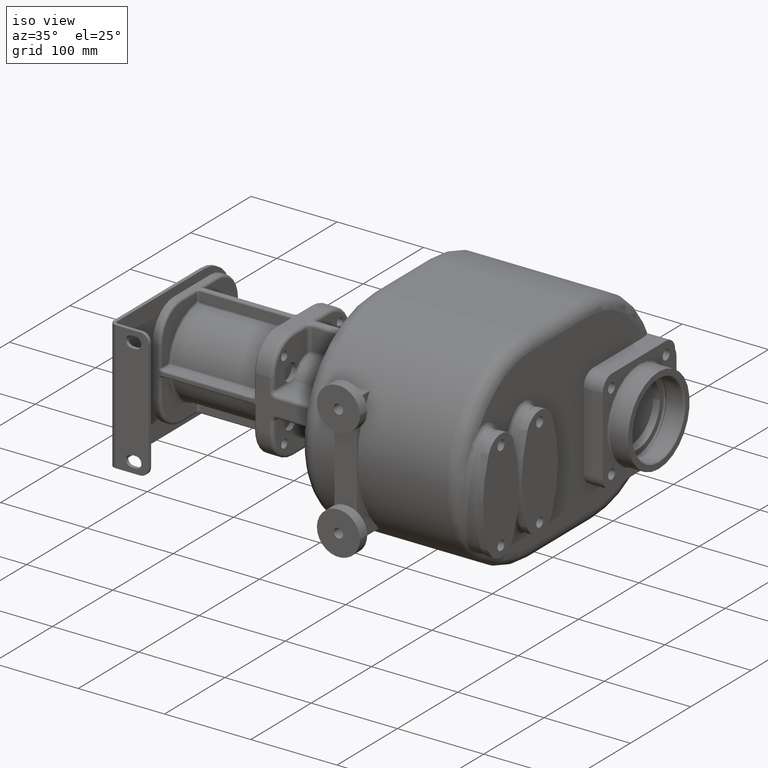
[diagram: clean part render]
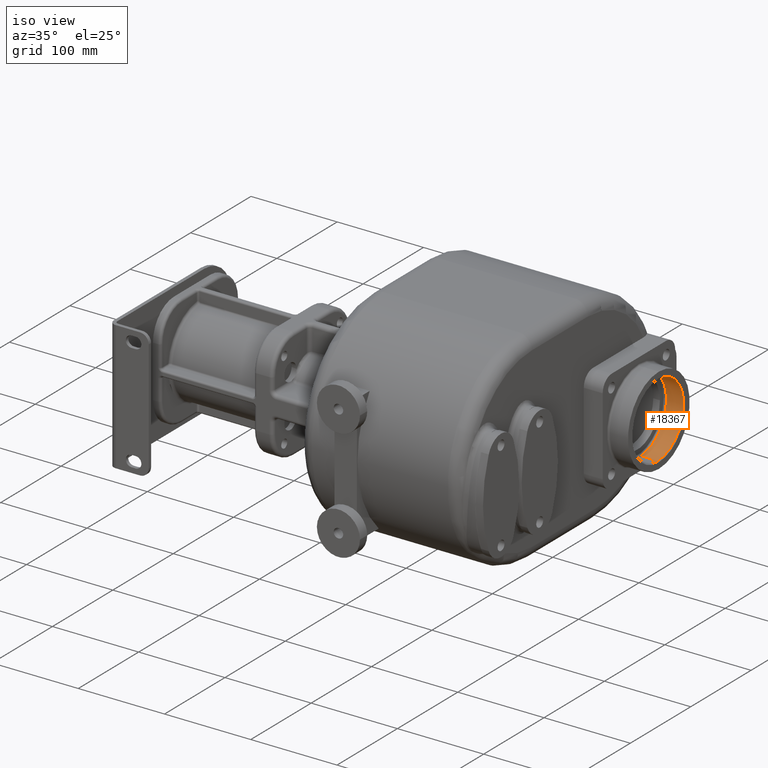
[diagram: same view with one face highlighted and labeled with its STEP entity id]
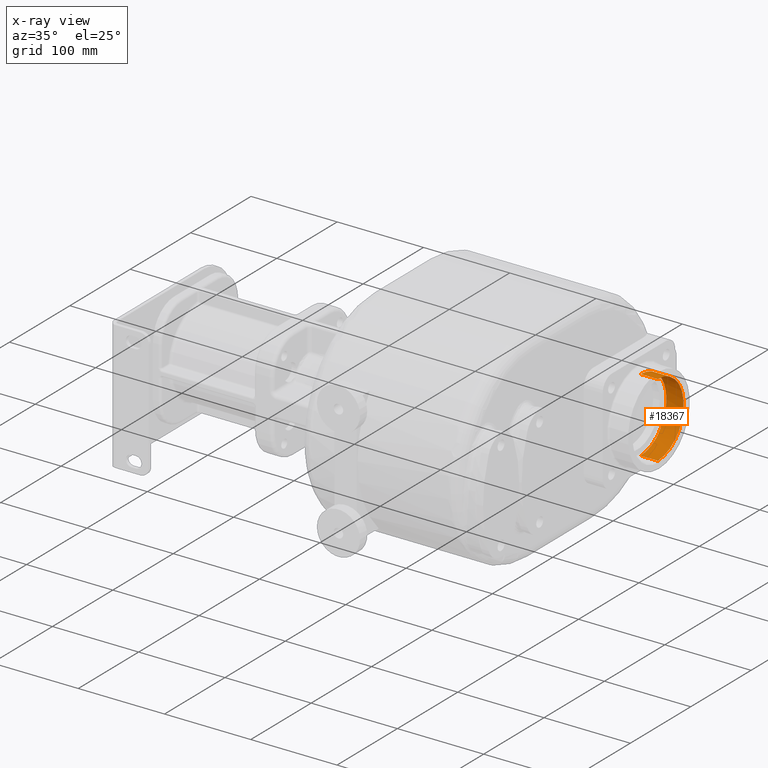
[diagram: x-ray of the same camera — body ghosted, the highlighted face saturated]
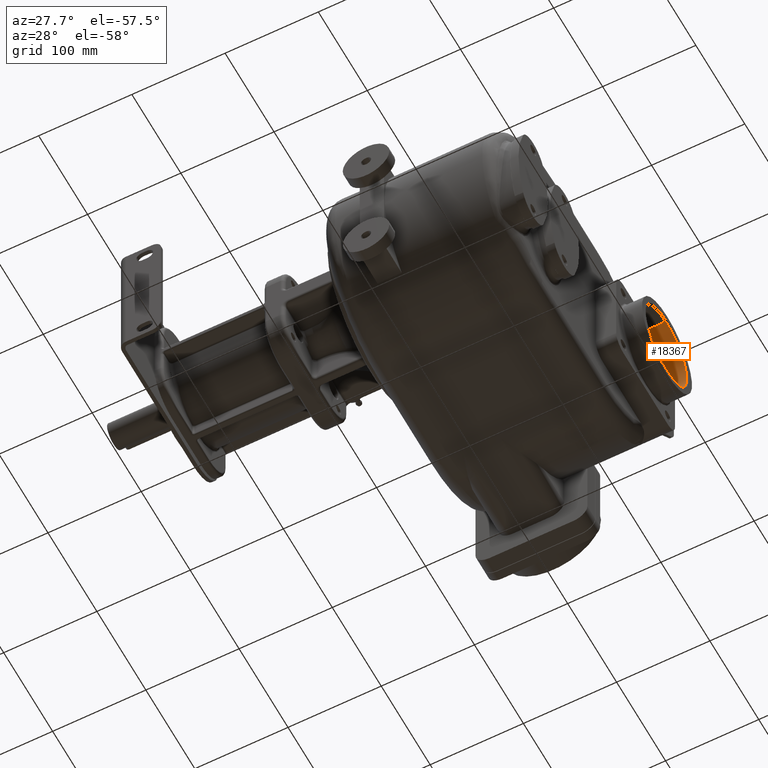
[diagram: same view with one face highlighted and labeled with its STEP entity id]
A machine part, iso view. The second image highlights one B-rep face of the part: STEP entity #18367.
The next image is the same camera in x-ray: the body ghosted, the highlighted face saturated — about 0% of this face is hidden behind the body in this view.
A second angle (auxiliary view) of the same face is appended — the face is thin or edge-on in the first view.
In plain terms, the highlighted cylindrical surface (partial cylindrical patch) has radius 42.75 mm, axis along (1, 0, 0).
Its self-contained STEP definition (entity closure, byte-faithful):
#1153=CARTESIAN_POINT('',(1.565E2,2.65E2,-1.4E1));
#1154=DIRECTION('',(1.E0,0.E0,0.E0));
#1155=DIRECTION('',(0.E0,0.E0,-1.E0));
#1156=AXIS2_PLACEMENT_3D('',#1153,#1154,#1155);
#1158=CARTESIAN_POINT('',(1.565E2,2.65E2,-1.4E1));
#1159=DIRECTION('',(1.E0,0.E0,0.E0));
#1160=DIRECTION('',(0.E0,1.E0,0.E0));
#1161=AXIS2_PLACEMENT_3D('',#1158,#1159,#1160);
#1163=CARTESIAN_POINT('',(1.76308E2,2.65E2,-1.4E1));
#1164=DIRECTION('',(-1.E0,0.E0,0.E0));
#1165=DIRECTION('',(0.E0,0.E0,1.E0));
#1166=AXIS2_PLACEMENT_3D('',#1163,#1164,#1165);
#1173=DIRECTION('',(1.E0,1.434860128756E-14,0.E0));
#1174=VECTOR('',#1173,1.9808E1);
#1175=CARTESIAN_POINT('',(1.565E2,2.65E2,-5.675E1));
#1176=LINE('',#1175,#1174);
#1182=DIRECTION('',(1.E0,-1.434860128756E-14,0.E0));
#1183=VECTOR('',#1182,1.9808E1);
#1184=CARTESIAN_POINT('',(1.565E2,2.65E2,2.875E1));
#1185=LINE('',#1184,#1183);
#15279=CARTESIAN_POINT('',(1.76308E2,2.65E2,-5.675E1));
#15280=CARTESIAN_POINT('',(1.76308E2,2.65E2,2.875E1));
#15281=VERTEX_POINT('',#15279);
#15282=VERTEX_POINT('',#15280);
#15291=CARTESIAN_POINT('',(1.565E2,2.65E2,-5.675E1));
#15292=CARTESIAN_POINT('',(1.565E2,3.0775E2,-1.4E1));
#15293=VERTEX_POINT('',#15291);
#15294=VERTEX_POINT('',#15292);
#15295=CARTESIAN_POINT('',(1.565E2,2.65E2,2.875E1));
#15296=VERTEX_POINT('',#15295);
#18351=CARTESIAN_POINT('',(1.5125E2,2.65E2,-1.4E1));
#18352=DIRECTION('',(1.E0,0.E0,0.E0));
#18353=DIRECTION('',(0.E0,0.E0,-1.E0));
#18354=AXIS2_PLACEMENT_3D('',#18351,#18352,#18353);
#18355=CYLINDRICAL_SURFACE('',#18354,4.275E1);
#18357=ORIENTED_EDGE('',*,*,#18356,.T.);
#18359=ORIENTED_EDGE('',*,*,#18358,.T.);
#18361=ORIENTED_EDGE('',*,*,#18360,.T.);
#18362=ORIENTED_EDGE('',*,*,#18345,.T.);
#18364=ORIENTED_EDGE('',*,*,#18363,.F.);
#18365=EDGE_LOOP('',(#18357,#18359,#18361,#18362,#18364));
#18366=FACE_OUTER_BOUND('',#18365,.F.);
#18367=ADVANCED_FACE('',(#18366),#18355,.F.);
#1157=CIRCLE('',#1156,4.275E1);
#1162=CIRCLE('',#1161,4.275E1);
#1167=CIRCLE('',#1166,4.275E1);
#18345=EDGE_CURVE('',#15282,#15281,#1167,.T.);
#18356=EDGE_CURVE('',#15293,#15294,#1157,.T.);
#18358=EDGE_CURVE('',#15294,#15296,#1162,.T.);
#18360=EDGE_CURVE('',#15296,#15282,#1185,.T.);
#18363=EDGE_CURVE('',#15293,#15281,#1176,.T.);